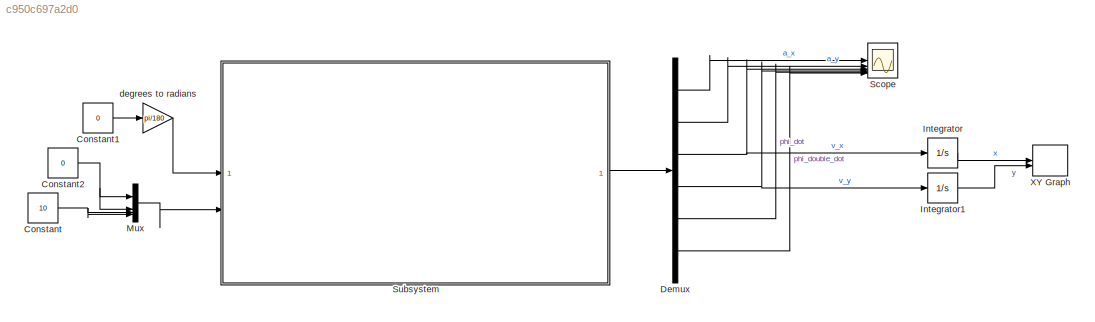
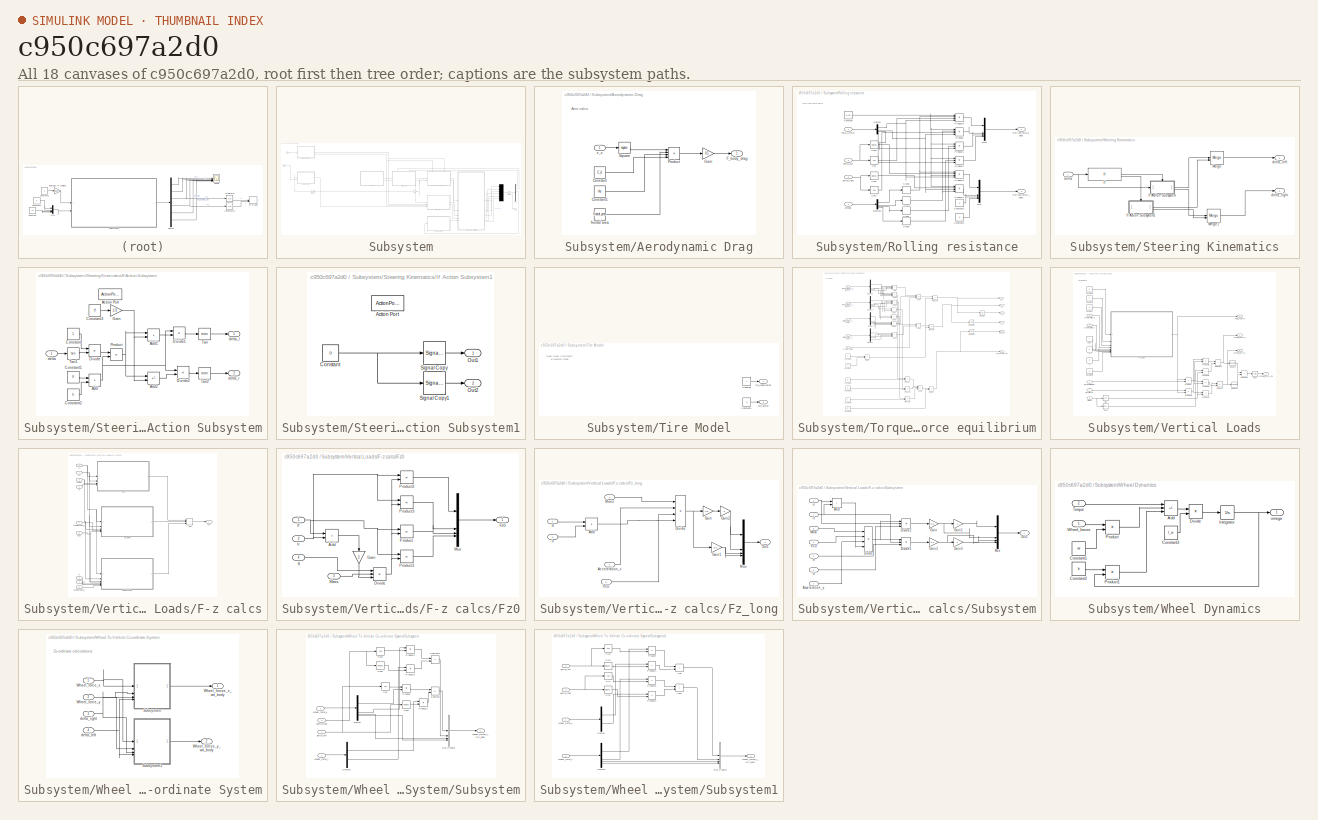
[diagram: thumbnail index - all 18 canvases of the model, root first then tree order]
MODEL slx_c950c697a2d0
KIND model
CONFIG AbsTol = auto
CONFIG EnableMultiTasking = off
CONFIG FixedStep = auto
CONFIG MaxStep = 0.1
CONFIG MinStep = auto
CONFIG RelTol = 1e-3
CONFIG SampleTimeConstraint = Unconstrained
CONFIG SolverName = ode45
CONFIG StartTime = 0.0
CONFIG StopTime = 100
WORKSPACE source: external: MATLAB File  (data not in archive)
BLOCK [Constant] Constant
  Value = 10
BLOCK [Constant] Constant1
  Value = 0
BLOCK [Constant] Constant2
  Value = 0
BLOCK [Demux] Demux
  Outputs = 6
BLOCK [Integrator] Integrator
BLOCK [Integrator] Integrator1
BLOCK [Mux] Mux
  DisplayOption = bar
BLOCK [Scope] Scope
  Floating = off
  NumInputPorts = 6
  ScopeSpecificationString = Simulink.scopes.TimeScopeBlockCfg('CurrentConfiguration', extmgr.ConfigurationSet(extmgr.Configuration('Core','General UI',true),extmgr.Configuration('Core','Source UI',true),extmgr.Configuration('Sources','WiredSimulink',true),extmgr.Configuration('Visuals','Time Domain',true,'SerializedDisplays',{struct('MinYLimReal','-1.23696','MaxYLimReal','11.13263','YLabelReal','','MinYLimMag','0.00000','Max...<+5352ch>
BLOCK [SubSystem] Subsystem
BLOCK [Abs] Subsystem/Abs
  SaturateOnIntegerOverflow = off
BLOCK [SubSystem] Subsystem/Aerodynamic Drag
BLOCK [Constant] Subsystem/Aerodynamic Drag/Constant
  Value = C_d
BLOCK [Constant] Subsystem/Aerodynamic Drag/Constant1
  Value = rho
BLOCK [Outport] Subsystem/Aerodynamic Drag/F_body_drag
BLOCK [Gain] Subsystem/Aerodynamic Drag/Gain
  Gain = 0.5
BLOCK [Product] Subsystem/Aerodynamic Drag/Product
  Inputs = 4
BLOCK [Math] Subsystem/Aerodynamic Drag/Square
  Operator = square
BLOCK [Constant] Subsystem/Aerodynamic Drag/frontal area
  Value = frontal_area
BLOCK [Inport] Subsystem/Aerodynamic Drag/v_x
BLOCK [Demux] Subsystem/Demux
  Outputs = 6
BLOCK [Mux] Subsystem/Mux
  DisplayOption = signals
  Inputs = 6
BLOCK [Outport] Subsystem/Out1
BLOCK [SubSystem] Subsystem/Rolling resistance
BLOCK [Constant] Subsystem/Rolling resistance/Constant
  Value = C_roll
BLOCK [Constant] Subsystem/Rolling resistance/Constant1
  Value = 0
BLOCK [Constant] Subsystem/Rolling resistance/Constant2
  Value = 0
BLOCK [Trigonometry] Subsystem/Rolling resistance/Cos
  Operator = cos
BLOCK [Trigonometry] Subsystem/Rolling resistance/Cos1
  Operator = cos
BLOCK [Trigonometry] Subsystem/Rolling resistance/Cos2
BLOCK [Trigonometry] Subsystem/Rolling resistance/Cos3
BLOCK [Demux] Subsystem/Rolling resistance/Demux
BLOCK [Demux] Subsystem/Rolling resistance/Demux1
BLOCK [Mux] Subsystem/Rolling resistance/Mux
  DisplayOption = bar
BLOCK [Mux] Subsystem/Rolling resistance/Mux1
  DisplayOption = bar
BLOCK [Product] Subsystem/Rolling resistance/Product
  Inputs = 4
BLOCK [Product] Subsystem/Rolling resistance/Product1
  Inputs = 3
BLOCK [Product] Subsystem/Rolling resistance/Product2
  Inputs = 3
BLOCK [Product] Subsystem/Rolling resistance/Product3
  Inputs = 4
BLOCK [Product] Subsystem/Rolling resistance/Product4
  Inputs = 4
BLOCK [Product] Subsystem/Rolling resistance/Product5
  Inputs = 4
BLOCK [Outport] Subsystem/Rolling resistance/Rolling_force_x_body
BLOCK [Outport] Subsystem/Rolling resistance/Rolling_force_y_body
  Port = 2
BLOCK [Signum] Subsystem/Rolling resistance/Sign
BLOCK [Signum] Subsystem/Rolling resistance/Sign1
BLOCK [Signum] Subsystem/Rolling resistance/Sign2
BLOCK [Signum] Subsystem/Rolling resistance/Sign3
BLOCK [Inport] Subsystem/Rolling resistance/Total_z_force
BLOCK [Inport] Subsystem/Rolling resistance/delta_left
  Port = 2
BLOCK [Inport] Subsystem/Rolling resistance/delta_right
  Port = 3
BLOCK [Inport] Subsystem/Rolling resistance/omega
  Port = 4
BLOCK [SubSystem] Subsystem/Steering Kinematics
BLOCK [If] Subsystem/Steering Kinematics/If
  IfExpression = u1 ~= 0
BLOCK [SubSystem] Subsystem/Steering Kinematics/If Action Subsystem
  TreatAsAtomicUnit = on
BLOCK [ActionPort] Subsystem/Steering Kinematics/If Action Subsystem/Action Port
  ActionPortLabel = if(u1 ~= 0)
BLOCK [Sum] Subsystem/Steering Kinematics/If Action Subsystem/Add
  IconShape = rectangular
BLOCK [Sum] Subsystem/Steering Kinematics/If Action Subsystem/Add1
  IconShape = rectangular
BLOCK [Sum] Subsystem/Steering Kinematics/If Action Subsystem/Add2
  IconShape = rectangular
  Inputs = +-
BLOCK [Constant] Subsystem/Steering Kinematics/If Action Subsystem/Constant
BLOCK [Constant] Subsystem/Steering Kinematics/If Action Subsystem/Constant1
  Value = lf
BLOCK [Constant] Subsystem/Steering Kinematics/If Action Subsystem/Constant2
  Value = lr
BLOCK [Constant] Subsystem/Steering Kinematics/If Action Subsystem/Constant3
  Value = tf
BLOCK [Product] Subsystem/Steering Kinematics/If Action Subsystem/Divide
  Inputs = */
BLOCK [Product] Subsystem/Steering Kinematics/If Action Subsystem/Divide1
  Inputs = */
BLOCK [Product] Subsystem/Steering Kinematics/If Action Subsystem/Divide2
  Inputs = */
BLOCK [Gain] Subsystem/Steering Kinematics/If Action Subsystem/Gain
  Gain = 1/2
BLOCK [Product] Subsystem/Steering Kinematics/If Action Subsystem/Product
BLOCK [Trigonometry] Subsystem/Steering Kinematics/If Action Subsystem/Tan
  Operator = atan
BLOCK [Trigonometry] Subsystem/Steering Kinematics/If Action Subsystem/Tan1
  Operator = tan
BLOCK [Trigonometry] Subsystem/Steering Kinematics/If Action Subsystem/Tan2
  Operator = atan
BLOCK [Inport] Subsystem/Steering Kinematics/If Action Subsystem/delta
BLOCK [Outport] Subsystem/Steering Kinematics/If Action Subsystem/delta_l
BLOCK [Outport] Subsystem/Steering Kinematics/If Action Subsystem/delta_r
  Port = 2
BLOCK [SubSystem] Subsystem/Steering Kinematics/If Action Subsystem1
  TreatAsAtomicUnit = on
BLOCK [ActionPort] Subsystem/Steering Kinematics/If Action Subsystem1/Action Port
  ActionPortLabel = else
BLOCK [Constant] Subsystem/Steering Kinematics/If Action Subsystem1/Constant
  Value = 0
BLOCK [Outport] Subsystem/Steering Kinematics/If Action Subsystem1/Out1
BLOCK [Outport] Subsystem/Steering Kinematics/If Action Subsystem1/Out2
  Port = 2
BLOCK [SignalConversion] Subsystem/Steering Kinematics/If Action Subsystem1/Signal Copy
  OverrideOpt = off
BLOCK [SignalConversion] Subsystem/Steering Kinematics/If Action Subsystem1/Signal Copy1
  OverrideOpt = off
BLOCK [Merge] Subsystem/Steering Kinematics/Merge
BLOCK [Merge] Subsystem/Steering Kinematics/Merge1
BLOCK [Inport] Subsystem/Steering Kinematics/delta
BLOCK [Outport] Subsystem/Steering Kinematics/delta_left
BLOCK [Outport] Subsystem/Steering Kinematics/delta_right
  Port = 2
BLOCK [SubSystem] Subsystem/Tire Model
BLOCK [Constant] Subsystem/Tire Model/Constant
BLOCK [Constant] Subsystem/Tire Model/Constant1
  Value = 0
BLOCK [Outport] Subsystem/Tire Model/mu_lateral
  Port = 2
BLOCK [Outport] Subsystem/Tire Model/mu_longitudinal
BLOCK [Inport] Subsystem/Torque
  Port = 2
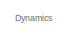
[diagram: Subsystem/Torque and force equilibrium - part 1/2, top left region]
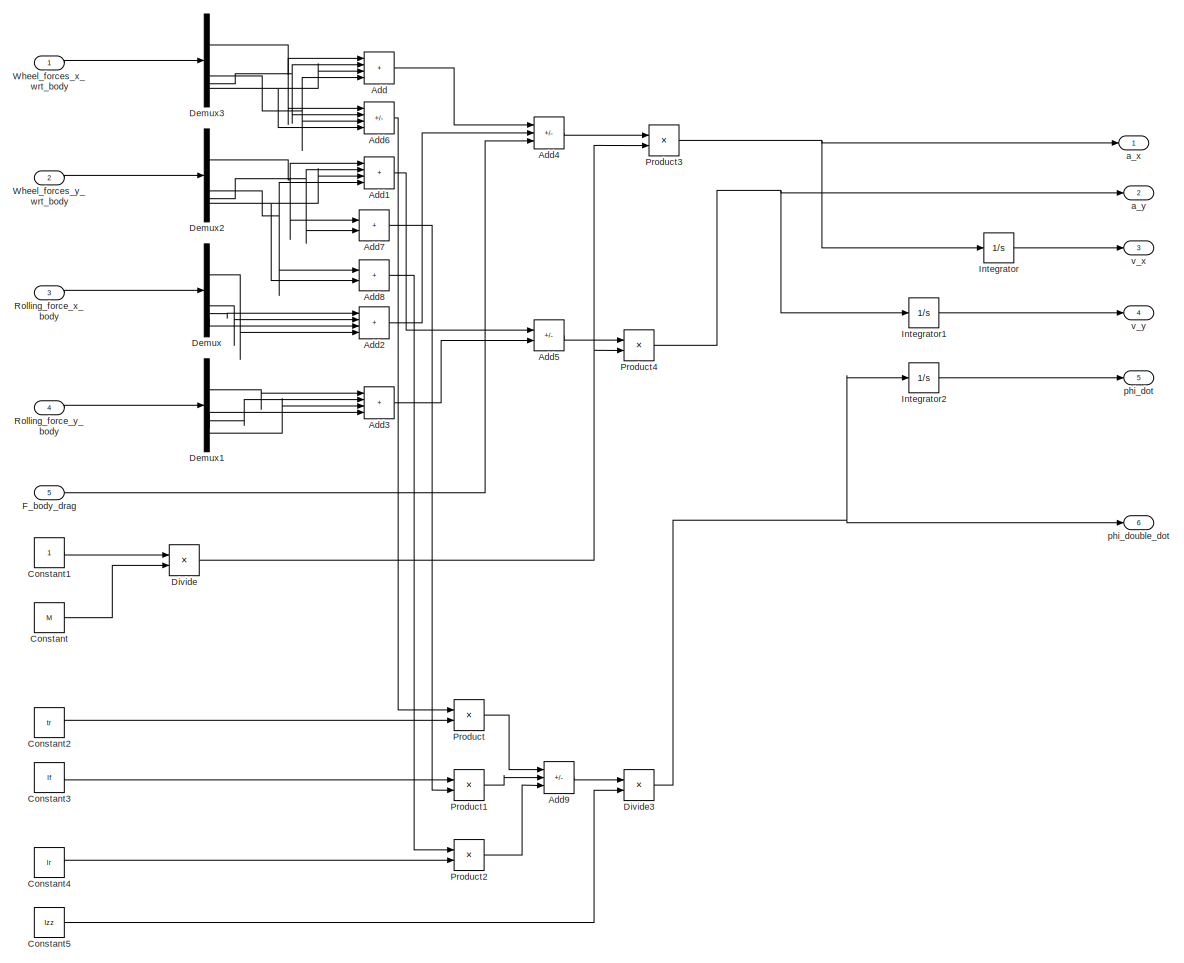
[diagram: Subsystem/Torque and force equilibrium - part 2/2, most of the canvas]
BLOCK [SubSystem] Subsystem/Torque and force equilibrium
BLOCK [Sum] Subsystem/Torque and force equilibrium/Add
  IconShape = rectangular
  Inputs = ++++
BLOCK [Sum] Subsystem/Torque and force equilibrium/Add1
  IconShape = rectangular
  Inputs = ++++
BLOCK [Sum] Subsystem/Torque and force equilibrium/Add2
  IconShape = rectangular
  Inputs = ++++
BLOCK [Sum] Subsystem/Torque and force equilibrium/Add3
  IconShape = rectangular
  Inputs = ++++
BLOCK [Sum] Subsystem/Torque and force equilibrium/Add4
  IconShape = rectangular
  Inputs = +--
BLOCK [Sum] Subsystem/Torque and force equilibrium/Add5
  IconShape = rectangular
  Inputs = +-
BLOCK [Sum] Subsystem/Torque and force equilibrium/Add6
  IconShape = rectangular
  Inputs = -+-+
BLOCK [Sum] Subsystem/Torque and force equilibrium/Add7
  IconShape = rectangular
BLOCK [Sum] Subsystem/Torque and force equilibrium/Add8
  IconShape = rectangular
BLOCK [Sum] Subsystem/Torque and force equilibrium/Add9
  IconShape = rectangular
  Inputs = ++-
BLOCK [Constant] Subsystem/Torque and force equilibrium/Constant
  Value = M
BLOCK [Constant] Subsystem/Torque and force equilibrium/Constant1
BLOCK [Constant] Subsystem/Torque and force equilibrium/Constant2
  Value = tr
BLOCK [Constant] Subsystem/Torque and force equilibrium/Constant3
  Value = lf
BLOCK [Constant] Subsystem/Torque and force equilibrium/Constant4
  Value = lr
BLOCK [Constant] Subsystem/Torque and force equilibrium/Constant5
  Value = Izz
BLOCK [Demux] Subsystem/Torque and force equilibrium/Demux
BLOCK [Demux] Subsystem/Torque and force equilibrium/Demux1
BLOCK [Demux] Subsystem/Torque and force equilibrium/Demux2
BLOCK [Demux] Subsystem/Torque and force equilibrium/Demux3
BLOCK [Product] Subsystem/Torque and force equilibrium/Divide
  Inputs = */
BLOCK [Product] Subsystem/Torque and force equilibrium/Divide3
  Inputs = */
BLOCK [Inport] Subsystem/Torque and force equilibrium/F_body_drag
  Port = 5
BLOCK [Integrator] Subsystem/Torque and force equilibrium/Integrator
BLOCK [Integrator] Subsystem/Torque and force equilibrium/Integrator1
BLOCK [Integrator] Subsystem/Torque and force equilibrium/Integrator2
BLOCK [Product] Subsystem/Torque and force equilibrium/Product
BLOCK [Product] Subsystem/Torque and force equilibrium/Product1
BLOCK [Product] Subsystem/Torque and force equilibrium/Product2
BLOCK [Product] Subsystem/Torque and force equilibrium/Product3
BLOCK [Product] Subsystem/Torque and force equilibrium/Product4
BLOCK [Inport] Subsystem/Torque and force equilibrium/Rolling_force_x_body
  Port = 3
BLOCK [Inport] Subsystem/Torque and force equilibrium/Rolling_force_y_body
  Port = 4
BLOCK [Inport] Subsystem/Torque and force equilibrium/Wheel_forces_x_wrt_body
BLOCK [Inport] Subsystem/Torque and force equilibrium/Wheel_forces_y_wrt_body
  Port = 2
BLOCK [Outport] Subsystem/Torque and force equilibrium/a_x
BLOCK [Outport] Subsystem/Torque and force equilibrium/a_y
  Port = 2
BLOCK [Outport] Subsystem/Torque and force equilibrium/phi_dot
  Port = 5
BLOCK [Outport] Subsystem/Torque and force equilibrium/phi_double_dot
  Port = 6
BLOCK [Outport] Subsystem/Torque and force equilibrium/v_x
  Port = 3
BLOCK [Outport] Subsystem/Torque and force equilibrium/v_y
  Port = 4
BLOCK [UnitDelay] Subsystem/Unit Delay
  HasFrameUpgradeWarning = on
  SampleTime = -1
BLOCK [UnitDelay] Subsystem/Unit Delay2
  HasFrameUpgradeWarning = on
  SampleTime = -1
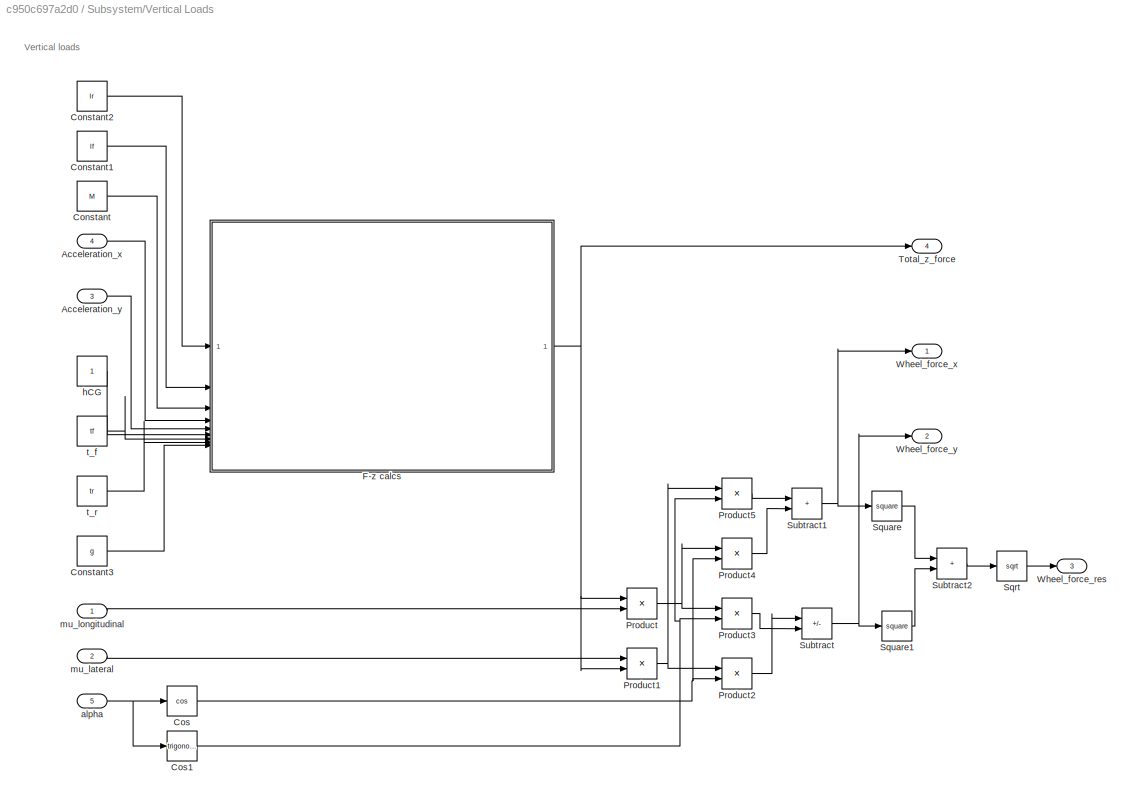
BLOCK [SubSystem] Subsystem/Vertical Loads
  PortSchema = {"entries":[{"content":{"sides":[{"content":{"connectorIds":["In1","In2"]},"type":"ConnectorPlacement.EquallySpacedRectSide","uuid":"420474dd-77ae-41a3-b184-b8a376845dee"},{"content":{"connectorIds":["Out1","Out2","Out3"],"side":"RIGHT"},"type":"ConnectorPlacement.EquallySpacedRectSide","uuid":"e98bfd49-6816-4384-b726-feedfd108428"},{"content":{"connectorIds":["In3","In4"],"side":"TOP"},"type":"Co...<+427ch>
BLOCK [Inport] Subsystem/Vertical Loads/Acceleration_x
  Port = 4
BLOCK [Inport] Subsystem/Vertical Loads/Acceleration_y
  Port = 3
BLOCK [Constant] Subsystem/Vertical Loads/Constant
  Value = M
BLOCK [Constant] Subsystem/Vertical Loads/Constant1
  Value = lf
BLOCK [Constant] Subsystem/Vertical Loads/Constant2
  Value = lr
BLOCK [Constant] Subsystem/Vertical Loads/Constant3
  Value = g
BLOCK [Trigonometry] Subsystem/Vertical Loads/Cos
  Operator = cos
BLOCK [Trigonometry] Subsystem/Vertical Loads/Cos1
BLOCK [SubSystem] Subsystem/Vertical Loads/F-z calcs
  NameLocation = top
BLOCK [Inport] Subsystem/Vertical Loads/F-z calcs/Acceleration_x
  Port = 4
BLOCK [Inport] Subsystem/Vertical Loads/F-z calcs/Acceleration_y
  Port = 5
BLOCK [Sum] Subsystem/Vertical Loads/F-z calcs/Add
  IconShape = rectangular
  Inputs = +++
BLOCK [Outport] Subsystem/Vertical Loads/F-z calcs/F_z
BLOCK [SubSystem] Subsystem/Vertical Loads/F-z calcs/Fz0
BLOCK [Sum] Subsystem/Vertical Loads/F-z calcs/Fz0/Add
  IconShape = rectangular
BLOCK [Product] Subsystem/Vertical Loads/F-z calcs/Fz0/Divide
  Inputs = **/
BLOCK [Outport] Subsystem/Vertical Loads/F-z calcs/Fz0/Fz0
BLOCK [Gain] Subsystem/Vertical Loads/F-z calcs/Fz0/Gain
  Gain = 2
  NameLocation = left
BLOCK [Inport] Subsystem/Vertical Loads/F-z calcs/Fz0/Mass
  Port = 3
BLOCK [Mux] Subsystem/Vertical Loads/F-z calcs/Fz0/Mux
  DisplayOption = bar
BLOCK [Product] Subsystem/Vertical Loads/F-z calcs/Fz0/Product
BLOCK [Product] Subsystem/Vertical Loads/F-z calcs/Fz0/Product1
BLOCK [Product] Subsystem/Vertical Loads/F-z calcs/Fz0/Product2
BLOCK [Product] Subsystem/Vertical Loads/F-z calcs/Fz0/Product3
BLOCK [Inport] Subsystem/Vertical Loads/F-z calcs/Fz0/g
  Port = 4
BLOCK [Inport] Subsystem/Vertical Loads/F-z calcs/Fz0/lf
BLOCK [Inport] Subsystem/Vertical Loads/F-z calcs/Fz0/lr
  Port = 2
BLOCK [SubSystem] Subsystem/Vertical Loads/F-z calcs/Fz_long
BLOCK [Inport] Subsystem/Vertical Loads/F-z calcs/Fz_long/Acceleration_x
  Port = 4
BLOCK [Sum] Subsystem/Vertical Loads/F-z calcs/Fz_long/Add
  IconShape = rectangular
BLOCK [Product] Subsystem/Vertical Loads/F-z calcs/Fz_long/Divide
  Inputs = ***/
BLOCK [Gain] Subsystem/Vertical Loads/F-z calcs/Fz_long/Gain
  Gain = 0.5
BLOCK [Gain] Subsystem/Vertical Loads/F-z calcs/Fz_long/Gain1
  Gain = 0.5
BLOCK [Gain] Subsystem/Vertical Loads/F-z calcs/Fz_long/Gain2
  Gain = -1
BLOCK [Inport] Subsystem/Vertical Loads/F-z calcs/Fz_long/Mass
  Port = 3
BLOCK [Mux] Subsystem/Vertical Loads/F-z calcs/Fz_long/Mux
  DisplayOption = bar
BLOCK [Outport] Subsystem/Vertical Loads/F-z calcs/Fz_long/Out1
BLOCK [Inport] Subsystem/Vertical Loads/F-z calcs/Fz_long/hCG
  Port = 5
BLOCK [Inport] Subsystem/Vertical Loads/F-z calcs/Fz_long/lf
BLOCK [Inport] Subsystem/Vertical Loads/F-z calcs/Fz_long/lr
  Port = 2
BLOCK [Inport] Subsystem/Vertical Loads/F-z calcs/Mass
  Port = 3
BLOCK [SubSystem] Subsystem/Vertical Loads/F-z calcs/Subsystem
BLOCK [Inport] Subsystem/Vertical Loads/F-z calcs/Subsystem/Acceleration_y
  Port = 7
BLOCK [Sum] Subsystem/Vertical Loads/F-z calcs/Subsystem/Add
  IconShape = rectangular
BLOCK [Product] Subsystem/Vertical Loads/F-z calcs/Subsystem/Divide
  Inputs = ***/
BLOCK [Product] Subsystem/Vertical Loads/F-z calcs/Subsystem/Divide1
  Inputs = **/
BLOCK [Product] Subsystem/Vertical Loads/F-z calcs/Subsystem/Divide2
  Inputs = **/
BLOCK [Gain] Subsystem/Vertical Loads/F-z calcs/Subsystem/Gain
  Gain = 0.5
BLOCK [Gain] Subsystem/Vertical Loads/F-z calcs/Subsystem/Gain1
  Gain = -1
BLOCK [Gain] Subsystem/Vertical Loads/F-z calcs/Subsystem/Gain2
  Gain = 0.5
BLOCK [Gain] Subsystem/Vertical Loads/F-z calcs/Subsystem/Gain3
  Gain = -1
BLOCK [Inport] Subsystem/Vertical Loads/F-z calcs/Subsystem/Mass
  Port = 2
BLOCK [Mux] Subsystem/Vertical Loads/F-z calcs/Subsystem/Mux
  DisplayOption = bar
BLOCK [Outport] Subsystem/Vertical Loads/F-z calcs/Subsystem/Out1
BLOCK [Inport] Subsystem/Vertical Loads/F-z calcs/Subsystem/hCG
  Port = 4
BLOCK [Inport] Subsystem/Vertical Loads/F-z calcs/Subsystem/lf
BLOCK [Inport] Subsystem/Vertical Loads/F-z calcs/Subsystem/lr
  Port = 3
BLOCK [Inport] Subsystem/Vertical Loads/F-z calcs/Subsystem/tf
  Port = 6
BLOCK [Inport] Subsystem/Vertical Loads/F-z calcs/Subsystem/tr
  Port = 5
BLOCK [Inport] Subsystem/Vertical Loads/F-z calcs/g
  Port = 9
BLOCK [Inport] Subsystem/Vertical Loads/F-z calcs/hCG
  Port = 6
BLOCK [Inport] Subsystem/Vertical Loads/F-z calcs/lf
  Port = 2
BLOCK [Inport] Subsystem/Vertical Loads/F-z calcs/lr
BLOCK [Inport] Subsystem/Vertical Loads/F-z calcs/tf
  Port = 7
BLOCK [Inport] Subsystem/Vertical Loads/F-z calcs/tr
  Port = 8
BLOCK [Product] Subsystem/Vertical Loads/Product
BLOCK [Product] Subsystem/Vertical Loads/Product1
BLOCK [Product] Subsystem/Vertical Loads/Product2
BLOCK [Product] Subsystem/Vertical Loads/Product3
BLOCK [Product] Subsystem/Vertical Loads/Product4
BLOCK [Product] Subsystem/Vertical Loads/Product5
BLOCK [Sqrt] Subsystem/Vertical Loads/Sqrt
BLOCK [Math] Subsystem/Vertical Loads/Square
  Operator = square
BLOCK [Math] Subsystem/Vertical Loads/Square1
  Operator = square
BLOCK [Sum] Subsystem/Vertical Loads/Subtract
  IconShape = rectangular
  Inputs = +-
BLOCK [Sum] Subsystem/Vertical Loads/Subtract1
  IconShape = rectangular
BLOCK [Sum] Subsystem/Vertical Loads/Subtract2
  IconShape = rectangular
BLOCK [Outport] Subsystem/Vertical Loads/Total_z_force
  Port = 4
BLOCK [Outport] Subsystem/Vertical Loads/Wheel_force_res
  Port = 3
BLOCK [Outport] Subsystem/Vertical Loads/Wheel_force_x
BLOCK [Outport] Subsystem/Vertical Loads/Wheel_force_y
  Port = 2
BLOCK [Inport] Subsystem/Vertical Loads/alpha
  Port = 5
BLOCK [Constant] Subsystem/Vertical Loads/hCG
BLOCK [Inport] Subsystem/Vertical Loads/mu_lateral
  Port = 2
BLOCK [Inport] Subsystem/Vertical Loads/mu_longitudinal
BLOCK [Constant] Subsystem/Vertical Loads/t_f
  Value = tf
BLOCK [Constant] Subsystem/Vertical Loads/t_r
  Value = tr
BLOCK [SubSystem] Subsystem/Wheel Dynamics
BLOCK [Sum] Subsystem/Wheel Dynamics/Add
  IconShape = rectangular
  Inputs = +--
BLOCK [Constant] Subsystem/Wheel Dynamics/Constant1
  Value = wr
BLOCK [Constant] Subsystem/Wheel Dynamics/Constant2
  Value = b
BLOCK [Constant] Subsystem/Wheel Dynamics/Constant3
  NameLocation = top
  Value = I_w
BLOCK [Product] Subsystem/Wheel Dynamics/Divide
  Inputs = */
BLOCK [Integrator] Subsystem/Wheel Dynamics/Integrator
BLOCK [Product] Subsystem/Wheel Dynamics/Product
BLOCK [Product] Subsystem/Wheel Dynamics/Product1
BLOCK [Inport] Subsystem/Wheel Dynamics/Torque
  Port = 2
BLOCK [Inport] Subsystem/Wheel Dynamics/Wheel_forces
BLOCK [Outport] Subsystem/Wheel Dynamics/omega
BLOCK [SubSystem] Subsystem/Wheel To Vehicle Co-ordinate System
  PortSchema = {"entries":[{"content":{"sides":[{"content":{"connectorIds":["In1","In2"]},"type":"ConnectorPlacement.EquallySpacedRectSide","uuid":"1d639fc9-362c-4114-a9a5-2cccb0aa4f8f"},{"content":{"connectorIds":["Out1","Out2"],"side":"RIGHT"},"type":"ConnectorPlacement.EquallySpacedRectSide","uuid":"af7b8bc1-4639-4e57-ae25-0425d451201b"},{"content":{"connectorIds":["In3","In4"],"side":"TOP"},"type":"Connector...<+264ch>
BLOCK [SubSystem] Subsystem/Wheel To Vehicle Co-ordinate System/Subsystem
BLOCK [BusCreator] Subsystem/Wheel To Vehicle Co-ordinate System/Subsystem/Bus Creator
  DisplayOption = bar
  InheritFromInputs = on
  Inputs = 4
BLOCK [Trigonometry] Subsystem/Wheel To Vehicle Co-ordinate System/Subsystem/Cos
  Operator = cos
BLOCK [Trigonometry] Subsystem/Wheel To Vehicle Co-ordinate System/Subsystem/Cos1
BLOCK [Trigonometry] Subsystem/Wheel To Vehicle Co-ordinate System/Subsystem/Cos2
  Operator = cos
BLOCK [Trigonometry] Subsystem/Wheel To Vehicle Co-ordinate System/Subsystem/Cos3
BLOCK [Demux] Subsystem/Wheel To Vehicle Co-ordinate System/Subsystem/Demux
BLOCK [Demux] Subsystem/Wheel To Vehicle Co-ordinate System/Subsystem/Demux1
BLOCK [Product] Subsystem/Wheel To Vehicle Co-ordinate System/Subsystem/Product
BLOCK [Product] Subsystem/Wheel To Vehicle Co-ordinate System/Subsystem/Product1
BLOCK [Product] Subsystem/Wheel To Vehicle Co-ordinate System/Subsystem/Product2
BLOCK [Product] Subsystem/Wheel To Vehicle Co-ordinate System/Subsystem/Product3
BLOCK [Sum] Subsystem/Wheel To Vehicle Co-ordinate System/Subsystem/Subtract
  IconShape = rectangular
  Inputs = +-
BLOCK [Sum] Subsystem/Wheel To Vehicle Co-ordinate System/Subsystem/Subtract1
  IconShape = rectangular
  Inputs = +-
BLOCK [Inport] Subsystem/Wheel To Vehicle Co-ordinate System/Subsystem/Wheel_force_x
BLOCK [Inport] Subsystem/Wheel To Vehicle Co-ordinate System/Subsystem/Wheel_force_y
  Port = 2
BLOCK [Outport] Subsystem/Wheel To Vehicle Co-ordinate System/Subsystem/Wheel_forces_x_wrt_body
BLOCK [Inport] Subsystem/Wheel To Vehicle Co-ordinate System/Subsystem/delta_left
  Port = 4
BLOCK [Inport] Subsystem/Wheel To Vehicle Co-ordinate System/Subsystem/delta_right
  Port = 3
BLOCK [SubSystem] Subsystem/Wheel To Vehicle Co-ordinate System/Subsystem1
BLOCK [Sum] Subsystem/Wheel To Vehicle Co-ordinate System/Subsystem1/Add
  IconShape = rectangular
BLOCK [Sum] Subsystem/Wheel To Vehicle Co-ordinate System/Subsystem1/Add1
  IconShape = rectangular
BLOCK [BusCreator] Subsystem/Wheel To Vehicle Co-ordinate System/Subsystem1/Bus Creator
  DisplayOption = bar
  InheritFromInputs = on
  Inputs = 4
BLOCK [Demux] Subsystem/Wheel To Vehicle Co-ordinate System/Subsystem1/Demux
BLOCK [Demux] Subsystem/Wheel To Vehicle Co-ordinate System/Subsystem1/Demux1
BLOCK [Product] Subsystem/Wheel To Vehicle Co-ordinate System/Subsystem1/Product
BLOCK [Product] Subsystem/Wheel To Vehicle Co-ordinate System/Subsystem1/Product1
BLOCK [Product] Subsystem/Wheel To Vehicle Co-ordinate System/Subsystem1/Product2
BLOCK [Product] Subsystem/Wheel To Vehicle Co-ordinate System/Subsystem1/Product3
BLOCK [Trigonometry] Subsystem/Wheel To Vehicle Co-ordinate System/Subsystem1/Sin
  Operator = cos
BLOCK [Trigonometry] Subsystem/Wheel To Vehicle Co-ordinate System/Subsystem1/Sin1
BLOCK [Trigonometry] Subsystem/Wheel To Vehicle Co-ordinate System/Subsystem1/Sin2
BLOCK [Trigonometry] Subsystem/Wheel To Vehicle Co-ordinate System/Subsystem1/Sin3
  Operator = cos
BLOCK [Inport] Subsystem/Wheel To Vehicle Co-ordinate System/Subsystem1/Wheel_force_x
BLOCK [Inport] Subsystem/Wheel To Vehicle Co-ordinate System/Subsystem1/Wheel_force_y
  Port = 2
BLOCK [Outport] Subsystem/Wheel To Vehicle Co-ordinate System/Subsystem1/Wheel_forces_y_wrt_body
BLOCK [Inport] Subsystem/Wheel To Vehicle Co-ordinate System/Subsystem1/delta_left
  Port = 4
BLOCK [Inport] Subsystem/Wheel To Vehicle Co-ordinate System/Subsystem1/delta_right
  Port = 3
BLOCK [Inport] Subsystem/Wheel To Vehicle Co-ordinate System/Wheel_force_x
BLOCK [Inport] Subsystem/Wheel To Vehicle Co-ordinate System/Wheel_force_y
  Port = 2
BLOCK [Outport] Subsystem/Wheel To Vehicle Co-ordinate System/Wheel_forces_x_wrt_body
BLOCK [Outport] Subsystem/Wheel To Vehicle Co-ordinate System/Wheel_forces_y_wrt_body
  Port = 2
BLOCK [Inport] Subsystem/Wheel To Vehicle Co-ordinate System/delta_left
  Port = 4
BLOCK [Inport] Subsystem/Wheel To Vehicle Co-ordinate System/delta_right
  Port = 3
BLOCK [Inport] Subsystem/delta
BLOCK [Record] XY Graph
  CompatibilityTag = XY
  FileSettingsInternal = {"entries":[{"content":{"excelSettings":{"content":{},"type":"Streamout.ExcelSettings"}},"type":"Streamout.FileSettingStorage","uuid":""}],"packageUris":["http:\/\/schema.mathworks.com\/mf0\/streamout_blocks\/R2020a"],"version":"1.0"}
  Layout = [1 1]
  SignalsInternal = {"entries":[{"content":{"signals":[{"content":{"blockPath":[],"dimensions":[1],"domain":"","lineColor":"#a2142f","plots":[ 1 ],"port":1,"sid":[""],"signalID":1,"signalName":"x"},"type":"RecordBlkView.Signal","uuid":""},{"content":{"blockPath":[],"dimensions":[1],"domain":"","lineColor":"#139fff","plots":[ 1 ],"port":2,"sid":[""],"signalID":2,"signalName":"y"},"type":"RecordBlkView.Signal","uuid":"...<+148ch>
  VisualizationBindings = {"xyplotplugin":{"info":[{"series":[{"bindingParametersList":[{"parameter":"X-Axis","signalID":1,"signalName":"x"},{"parameter":"Y-Axis","signalID":2,"signalName":"y"}],"seriesID":0}],"subplotID":1}]}}
BLOCK [Gain] degrees to radians
  Gain = pi/180
ANNOTATION Subsystem/Aerodynamic Drag: Aero calcs
ANNOTATION Subsystem/Rolling resistance: Rolling force calcs
ANNOTATION Subsystem/Tire Model: Magic Model implement? Bruckhardt model
ANNOTATION Subsystem/Torque and force equilibrium: Dynamics
ANNOTATION Subsystem/Vertical Loads: Vertical loads
ANNOTATION Subsystem/Wheel To Vehicle Co-ordinate System: Co-ordinate calculations
LINE Constant1:1 -> degrees to radians:1
NET Constant2:1 -> Mux:1, Mux:2
NET Constant:1 -> Mux:3, Mux:4
LINE Demux:1 -> Scope:1
LINE Demux:2 -> Scope:2
NET Demux:3 -> Integrator:1, Scope:3
NET Demux:4 -> Integrator1:1, Scope:4
LINE Demux:5 -> Scope:5
LINE Demux:6 -> Scope:6
LINE Integrator1:1 -> XY Graph:2
LINE Integrator:1 -> XY Graph:1
LINE Mux:1 -> Subsystem:2
LINE Subsystem/Abs:1 -> Subsystem/Unit Delay2:1
LINE Subsystem/Aerodynamic Drag/Constant1:1 -> Subsystem/Aerodynamic Drag/Product:3
LINE Subsystem/Aerodynamic Drag/Constant:1 -> Subsystem/Aerodynamic Drag/Product:4
LINE Subsystem/Aerodynamic Drag/Gain:1 -> Subsystem/Aerodynamic Drag/F_body_drag:1
LINE Subsystem/Aerodynamic Drag/Product:1 -> Subsystem/Aerodynamic Drag/Gain:1
LINE Subsystem/Aerodynamic Drag/Square:1 -> Subsystem/Aerodynamic Drag/Product:1
LINE Subsystem/Aerodynamic Drag/frontal area:1 -> Subsystem/Aerodynamic Drag/Product:2
LINE Subsystem/Aerodynamic Drag/v_x:1 -> Subsystem/Aerodynamic Drag/Square:1
LINE Subsystem/Aerodynamic Drag:1 -> Subsystem/Torque and force equilibrium:5
LINE Subsystem/Demux:1 -> Subsystem/Vertical Loads:4
LINE Subsystem/Demux:2 -> Subsystem/Vertical Loads:3
LINE Subsystem/Demux:3 -> Subsystem/Aerodynamic Drag:1
LINE Subsystem/Mux:1 -> Subsystem/Unit Delay:1
LINE Subsystem/Rolling resistance/Constant1:1 -> Subsystem/Rolling resistance/Mux:3
LINE Subsystem/Rolling resistance/Constant2:1 -> Subsystem/Rolling resistance/Mux:4
NET Subsystem/Rolling resistance/Constant:1 -> Subsystem/Rolling resistance/Product1:1, Subsystem/Rolling resistance/Product2:1, Subsystem/Rolling resistance/Product3:3, Subsystem/Rolling resistance/Product4:1, Subsystem/Rolling resistance/Product5:1, Subsystem/Rolling resistance/Product:1
LINE Subsystem/Rolling resistance/Cos1:1 -> Subsystem/Rolling resistance/Product:3
LINE Subsystem/Rolling resistance/Cos2:1 -> Subsystem/Rolling resistance/Product4:2
LINE Subsystem/Rolling resistance/Cos3:1 -> Subsystem/Rolling resistance/Product3:2
LINE Subsystem/Rolling resistance/Cos:1 -> Subsystem/Rolling resistance/Product5:3
LINE Subsystem/Rolling resistance/Demux1:1 -> Subsystem/Rolling resistance/Sign3:1
LINE Subsystem/Rolling resistance/Demux1:2 -> Subsystem/Rolling resistance/Sign:1
LINE Subsystem/Rolling resistance/Demux1:3 -> Subsystem/Rolling resistance/Sign1:1
LINE Subsystem/Rolling resistance/Demux1:4 -> Subsystem/Rolling resistance/Sign2:1
NET Subsystem/Rolling resistance/Demux:1 -> Subsystem/Rolling resistance/Product3:4, Subsystem/Rolling resistance/Product5:4
NET Subsystem/Rolling resistance/Demux:2 -> Subsystem/Rolling resistance/Product4:3, Subsystem/Rolling resistance/Product:4
LINE Subsystem/Rolling resistance/Demux:3 -> Subsystem/Rolling resistance/Product1:3
LINE Subsystem/Rolling resistance/Demux:4 -> Subsystem/Rolling resistance/Product2:3
LINE Subsystem/Rolling resistance/Mux1:1 -> Subsystem/Rolling resistance/Rolling_force_x_body:1
LINE Subsystem/Rolling resistance/Mux:1 -> Subsystem/Rolling resistance/Rolling_force_y_body:1
LINE Subsystem/Rolling resistance/Product1:1 -> Subsystem/Rolling resistance/Mux1:3
LINE Subsystem/Rolling resistance/Product2:1 -> Subsystem/Rolling resistance/Mux1:4
LINE Subsystem/Rolling resistance/Product3:1 -> Subsystem/Rolling resistance/Mux:1
LINE Subsystem/Rolling resistance/Product4:1 -> Subsystem/Rolling resistance/Mux:2
LINE Subsystem/Rolling resistance/Product5:1 -> Subsystem/Rolling resistance/Mux1:1
LINE Subsystem/Rolling resistance/Product:1 -> Subsystem/Rolling resistance/Mux1:2
LINE Subsystem/Rolling resistance/Sign1:1 -> Subsystem/Rolling resistance/Product1:2
LINE Subsystem/Rolling resistance/Sign2:1 -> Subsystem/Rolling resistance/Product2:2
NET Subsystem/Rolling resistance/Sign3:1 -> Subsystem/Rolling resistance/Product3:1, Subsystem/Rolling resistance/Product5:2
NET Subsystem/Rolling resistance/Sign:1 -> Subsystem/Rolling resistance/Product4:4, Subsystem/Rolling resistance/Product:2
LINE Subsystem/Rolling resistance/Total_z_force:1 -> Subsystem/Rolling resistance/Demux:1
NET Subsystem/Rolling resistance/delta_left:1 -> Subsystem/Rolling resistance/Cos3:1, Subsystem/Rolling resistance/Cos:1
NET Subsystem/Rolling resistance/delta_right:1 -> Subsystem/Rolling resistance/Cos1:1, Subsystem/Rolling resistance/Cos2:1
LINE Subsystem/Rolling resistance/omega:1 -> Subsystem/Rolling resistance/Demux1:1
LINE Subsystem/Rolling resistance:1 -> Subsystem/Torque and force equilibrium:3
LINE Subsystem/Rolling resistance:2 -> Subsystem/Torque and force equilibrium:4
LINE Subsystem/Steering Kinematics/If Action Subsystem/Add1:1 -> Subsystem/Steering Kinematics/If Action Subsystem/Divide1:2
LINE Subsystem/Steering Kinematics/If Action Subsystem/Add2:1 -> Subsystem/Steering Kinematics/If Action Subsystem/Divide2:2
NET Subsystem/Steering Kinematics/If Action Subsystem/Add:1 -> Subsystem/Steering Kinematics/If Action Subsystem/Divide1:1, Subsystem/Steering Kinematics/If Action Subsystem/Divide2:1, Subsystem/Steering Kinematics/If Action Subsystem/Product:2
LINE Subsystem/Steering Kinematics/If Action Subsystem/Constant1:1 -> Subsystem/Steering Kinematics/If Action Subsystem/Add:1
LINE Subsystem/Steering Kinematics/If Action Subsystem/Constant2:1 -> Subsystem/Steering Kinematics/If Action Subsystem/Add:2
LINE Subsystem/Steering Kinematics/If Action Subsystem/Constant3:1 -> Subsystem/Steering Kinematics/If Action Subsystem/Gain:1
LINE Subsystem/Steering Kinematics/If Action Subsystem/Constant:1 -> Subsystem/Steering Kinematics/If Action Subsystem/Divide:1
LINE Subsystem/Steering Kinematics/If Action Subsystem/Divide1:1 -> Subsystem/Steering Kinematics/If Action Subsystem/Tan:1
LINE Subsystem/Steering Kinematics/If Action Subsystem/Divide2:1 -> Subsystem/Steering Kinematics/If Action Subsystem/Tan2:1
LINE Subsystem/Steering Kinematics/If Action Subsystem/Divide:1 -> Subsystem/Steering Kinematics/If Action Subsystem/Product:1
NET Subsystem/Steering Kinematics/If Action Subsystem/Gain:1 -> Subsystem/Steering Kinematics/If Action Subsystem/Add1:2, Subsystem/Steering Kinematics/If Action Subsystem/Add2:2
NET Subsystem/Steering Kinematics/If Action Subsystem/Product:1 -> Subsystem/Steering Kinematics/If Action Subsystem/Add1:1, Subsystem/Steering Kinematics/If Action Subsystem/Add2:1
LINE Subsystem/Steering Kinematics/If Action Subsystem/Tan1:1 -> Subsystem/Steering Kinematics/If Action Subsystem/Divide:2
LINE Subsystem/Steering Kinematics/If Action Subsystem/Tan2:1 -> Subsystem/Steering Kinematics/If Action Subsystem/delta_r:1
LINE Subsystem/Steering Kinematics/If Action Subsystem/Tan:1 -> Subsystem/Steering Kinematics/If Action Subsystem/delta_l:1
LINE Subsystem/Steering Kinematics/If Action Subsystem/delta:1 -> Subsystem/Steering Kinematics/If Action Subsystem/Tan1:1
NET Subsystem/Steering Kinematics/If Action Subsystem1/Constant:1 -> Subsystem/Steering Kinematics/If Action Subsystem1/Signal Copy1:1, Subsystem/Steering Kinematics/If Action Subsystem1/Signal Copy:1
LINE Subsystem/Steering Kinematics/If Action Subsystem1/Signal Copy1:1 -> Subsystem/Steering Kinematics/If Action Subsystem1/Out2:1
LINE Subsystem/Steering Kinematics/If Action Subsystem1/Signal Copy:1 -> Subsystem/Steering Kinematics/If Action Subsystem1/Out1:1
LINE Subsystem/Steering Kinematics/If Action Subsystem1:1 -> Subsystem/Steering Kinematics/Merge:2
LINE Subsystem/Steering Kinematics/If Action Subsystem1:2 -> Subsystem/Steering Kinematics/Merge1:2
LINE Subsystem/Steering Kinematics/If Action Subsystem:1 -> Subsystem/Steering Kinematics/Merge:1
LINE Subsystem/Steering Kinematics/If Action Subsystem:2 -> Subsystem/Steering Kinematics/Merge1:1
LINE Subsystem/Steering Kinematics/If:1 -> Subsystem/Steering Kinematics/If Action Subsystem:ifaction
LINE Subsystem/Steering Kinematics/If:2 -> Subsystem/Steering Kinematics/If Action Subsystem1:ifaction
LINE Subsystem/Steering Kinematics/Merge1:1 -> Subsystem/Steering Kinematics/delta_right:1
LINE Subsystem/Steering Kinematics/Merge:1 -> Subsystem/Steering Kinematics/delta_left:1
NET Subsystem/Steering Kinematics/delta:1 -> Subsystem/Steering Kinematics/If Action Subsystem:1, Subsystem/Steering Kinematics/If:1
NET Subsystem/Steering Kinematics:1 -> Subsystem/Rolling resistance:2, Subsystem/Wheel To Vehicle Co-ordinate System:4
NET Subsystem/Steering Kinematics:2 -> Subsystem/Rolling resistance:3, Subsystem/Wheel To Vehicle Co-ordinate System:3
LINE Subsystem/Tire Model/Constant1:1 -> Subsystem/Tire Model/mu_lateral:1
LINE Subsystem/Tire Model/Constant:1 -> Subsystem/Tire Model/mu_longitudinal:1
LINE Subsystem/Tire Model:1 -> Subsystem/Vertical Loads:1
LINE Subsystem/Tire Model:2 -> Subsystem/Vertical Loads:2
LINE Subsystem/Torque and force equilibrium/Add1:1 -> Subsystem/Torque and force equilibrium/Add5:1
LINE Subsystem/Torque and force equilibrium/Add2:1 -> Subsystem/Torque and force equilibrium/Add4:2
LINE Subsystem/Torque and force equilibrium/Add3:1 -> Subsystem/Torque and force equilibrium/Add5:2
LINE Subsystem/Torque and force equilibrium/Add4:1 -> Subsystem/Torque and force equilibrium/Product3:1
LINE Subsystem/Torque and force equilibrium/Add5:1 -> Subsystem/Torque and force equilibrium/Product4:1
LINE Subsystem/Torque and force equilibrium/Add6:1 -> Subsystem/Torque and force equilibrium/Product:1
LINE Subsystem/Torque and force equilibrium/Add7:1 -> Subsystem/Torque and force equilibrium/Product1:2
LINE Subsystem/Torque and force equilibrium/Add8:1 -> Subsystem/Torque and force equilibrium/Product2:1
LINE Subsystem/Torque and force equilibrium/Add9:1 -> Subsystem/Torque and force equilibrium/Divide3:1
LINE Subsystem/Torque and force equilibrium/Add:1 -> Subsystem/Torque and force equilibrium/Add4:1
LINE Subsystem/Torque and force equilibrium/Constant1:1 -> Subsystem/Torque and force equilibrium/Divide:1
LINE Subsystem/Torque and force equilibrium/Constant2:1 -> Subsystem/Torque and force equilibrium/Product:2
LINE Subsystem/Torque and force equilibrium/Constant3:1 -> Subsystem/Torque and force equilibrium/Product1:1
LINE Subsystem/Torque and force equilibrium/Constant4:1 -> Subsystem/Torque and force equilibrium/Product2:2
LINE Subsystem/Torque and force equilibrium/Constant5:1 -> Subsystem/Torque and force equilibrium/Divide3:2
LINE Subsystem/Torque and force equilibrium/Constant:1 -> Subsystem/Torque and force equilibrium/Divide:2
LINE Subsystem/Torque and force equilibrium/Demux1:1 -> Subsystem/Torque and force equilibrium/Add3:1
LINE Subsystem/Torque and force equilibrium/Demux1:2 -> Subsystem/Torque and force equilibrium/Add3:2
LINE Subsystem/Torque and force equilibrium/Demux1:3 -> Subsystem/Torque and force equilibrium/Add3:4
LINE Subsystem/Torque and force equilibrium/Demux1:4 -> Subsystem/Torque and force equilibrium/Add3:3
NET Subsystem/Torque and force equilibrium/Demux2:1 -> Subsystem/Torque and force equilibrium/Add1:1, Subsystem/Torque and force equilibrium/Add7:1
NET Subsystem/Torque and force equilibrium/Demux2:2 -> Subsystem/Torque and force equilibrium/Add1:4, Subsystem/Torque and force equilibrium/Add8:1
NET Subsystem/Torque and force equilibrium/Demux2:3 -> Subsystem/Torque and force equilibrium/Add1:2, Subsystem/Torque and force equilibrium/Add7:2
NET Subsystem/Torque and force equilibrium/Demux2:4 -> Subsystem/Torque and force equilibrium/Add1:3, Subsystem/Torque and force equilibrium/Add8:2
NET Subsystem/Torque and force equilibrium/Demux3:1 -> Subsystem/Torque and force equilibrium/Add6:1, Subsystem/Torque and force equilibrium/Add:1
NET Subsystem/Torque and force equilibrium/Demux3:2 -> Subsystem/Torque and force equilibrium/Add6:3, Subsystem/Torque and force equilibrium/Add:4
NET Subsystem/Torque and force equilibrium/Demux3:3 -> Subsystem/Torque and force equilibrium/Add6:2, Subsystem/Torque and force equilibrium/Add:2
NET Subsystem/Torque and force equilibrium/Demux3:4 -> Subsystem/Torque and force equilibrium/Add6:4, Subsystem/Torque and force equilibrium/Add:3
LINE Subsystem/Torque and force equilibrium/Demux:1 -> Subsystem/Torque and force equilibrium/Add2:4
LINE Subsystem/Torque and force equilibrium/Demux:2 -> Subsystem/Torque and force equilibrium/Add2:2
LINE Subsystem/Torque and force equilibrium/Demux:3 -> Subsystem/Torque and force equilibrium/Add2:1
LINE Subsystem/Torque and force equilibrium/Demux:4 -> Subsystem/Torque and force equilibrium/Add2:3
NET Subsystem/Torque and force equilibrium/Divide3:1 -> Subsystem/Torque and force equilibrium/Integrator2:1, Subsystem/Torque and force equilibrium/phi_double_dot:1
NET Subsystem/Torque and force equilibrium/Divide:1 -> Subsystem/Torque and force equilibrium/Product3:2, Subsystem/Torque and force equilibrium/Product4:2
LINE Subsystem/Torque and force equilibrium/F_body_drag:1 -> Subsystem/Torque and force equilibrium/Add4:3
LINE Subsystem/Torque and force equilibrium/Integrator1:1 -> Subsystem/Torque and force equilibrium/v_y:1
LINE Subsystem/Torque and force equilibrium/Integrator2:1 -> Subsystem/Torque and force equilibrium/phi_dot:1
LINE Subsystem/Torque and force equilibrium/Integrator:1 -> Subsystem/Torque and force equilibrium/v_x:1
LINE Subsystem/Torque and force equilibrium/Product1:1 -> Subsystem/Torque and force equilibrium/Add9:2
LINE Subsystem/Torque and force equilibrium/Product2:1 -> Subsystem/Torque and force equilibrium/Add9:3
NET Subsystem/Torque and force equilibrium/Product3:1 -> Subsystem/Torque and force equilibrium/Integrator:1, Subsystem/Torque and force equilibrium/a_x:1
NET Subsystem/Torque and force equilibrium/Product4:1 -> Subsystem/Torque and force equilibrium/Integrator1:1, Subsystem/Torque and force equilibrium/a_y:1
LINE Subsystem/Torque and force equilibrium/Product:1 -> Subsystem/Torque and force equilibrium/Add9:1
LINE Subsystem/Torque and force equilibrium/Rolling_force_x_body:1 -> Subsystem/Torque and force equilibrium/Demux:1
LINE Subsystem/Torque and force equilibrium/Rolling_force_y_body:1 -> Subsystem/Torque and force equilibrium/Demux1:1
LINE Subsystem/Torque and force equilibrium/Wheel_forces_x_wrt_body:1 -> Subsystem/Torque and force equilibrium/Demux3:1
LINE Subsystem/Torque and force equilibrium/Wheel_forces_y_wrt_body:1 -> Subsystem/Torque and force equilibrium/Demux2:1
LINE Subsystem/Torque and force equilibrium:1 -> Subsystem/Mux:1
LINE Subsystem/Torque and force equilibrium:2 -> Subsystem/Mux:2
LINE Subsystem/Torque and force equilibrium:3 -> Subsystem/Mux:3
LINE Subsystem/Torque and force equilibrium:4 -> Subsystem/Mux:4
LINE Subsystem/Torque and force equilibrium:5 -> Subsystem/Mux:5
LINE Subsystem/Torque and force equilibrium:6 -> Subsystem/Mux:6
LINE Subsystem/Torque:1 -> Subsystem/Wheel Dynamics:2
LINE Subsystem/Unit Delay2:1 -> Subsystem/Wheel Dynamics:1
NET Subsystem/Unit Delay:1 -> Subsystem/Demux:1, Subsystem/Out1:1
LINE Subsystem/Vertical Loads/Acceleration_x:1 -> Subsystem/Vertical Loads/F-z calcs:4
LINE Subsystem/Vertical Loads/Acceleration_y:1 -> Subsystem/Vertical Loads/F-z calcs:5
LINE Subsystem/Vertical Loads/Constant1:1 -> Subsystem/Vertical Loads/F-z calcs:2
LINE Subsystem/Vertical Loads/Constant2:1 -> Subsystem/Vertical Loads/F-z calcs:1
LINE Subsystem/Vertical Loads/Constant3:1 -> Subsystem/Vertical Loads/F-z calcs:9
LINE Subsystem/Vertical Loads/Constant:1 -> Subsystem/Vertical Loads/F-z calcs:3
NET Subsystem/Vertical Loads/Cos1:1 -> Subsystem/Vertical Loads/Product3:2, Subsystem/Vertical Loads/Product5:2
NET Subsystem/Vertical Loads/Cos:1 -> Subsystem/Vertical Loads/Product2:2, Subsystem/Vertical Loads/Product4:2
LINE Subsystem/Vertical Loads/F-z calcs/Acceleration_x:1 -> Subsystem/Vertical Loads/F-z calcs/Fz_long:4
LINE Subsystem/Vertical Loads/F-z calcs/Acceleration_y:1 -> Subsystem/Vertical Loads/F-z calcs/Subsystem:7
LINE Subsystem/Vertical Loads/F-z calcs/Add:1 -> Subsystem/Vertical Loads/F-z calcs/F_z:1
LINE Subsystem/Vertical Loads/F-z calcs/Fz0/Add:1 -> Subsystem/Vertical Loads/F-z calcs/Fz0/Gain:1
NET Subsystem/Vertical Loads/F-z calcs/Fz0/Divide:1 -> Subsystem/Vertical Loads/F-z calcs/Fz0/Product1:2, Subsystem/Vertical Loads/F-z calcs/Fz0/Product2:2, Subsystem/Vertical Loads/F-z calcs/Fz0/Product3:2, Subsystem/Vertical Loads/F-z calcs/Fz0/Product:2
LINE Subsystem/Vertical Loads/F-z calcs/Fz0/Gain:1 -> Subsystem/Vertical Loads/F-z calcs/Fz0/Divide:3
LINE Subsystem/Vertical Loads/F-z calcs/Fz0/Mass:1 -> Subsystem/Vertical Loads/F-z calcs/Fz0/Divide:2
LINE Subsystem/Vertical Loads/F-z calcs/Fz0/Mux:1 -> Subsystem/Vertical Loads/F-z calcs/Fz0/Fz0:1
LINE Subsystem/Vertical Loads/F-z calcs/Fz0/Product1:1 -> Subsystem/Vertical Loads/F-z calcs/Fz0/Mux:4
LINE Subsystem/Vertical Loads/F-z calcs/Fz0/Product2:1 -> Subsystem/Vertical Loads/F-z calcs/Fz0/Mux:1
LINE Subsystem/Vertical Loads/F-z calcs/Fz0/Product3:1 -> Subsystem/Vertical Loads/F-z calcs/Fz0/Mux:2
LINE Subsystem/Vertical Loads/F-z calcs/Fz0/Product:1 -> Subsystem/Vertical Loads/F-z calcs/Fz0/Mux:3
LINE Subsystem/Vertical Loads/F-z calcs/Fz0/g:1 -> Subsystem/Vertical Loads/F-z calcs/Fz0/Divide:1
NET Subsystem/Vertical Loads/F-z calcs/Fz0/lf:1 -> Subsystem/Vertical Loads/F-z calcs/Fz0/Add:1, Subsystem/Vertical Loads/F-z calcs/Fz0/Product1:1, Subsystem/Vertical Loads/F-z calcs/Fz0/Product:1
NET Subsystem/Vertical Loads/F-z calcs/Fz0/lr:1 -> Subsystem/Vertical Loads/F-z calcs/Fz0/Add:2, Subsystem/Vertical Loads/F-z calcs/Fz0/Product2:1, Subsystem/Vertical Loads/F-z calcs/Fz0/Product3:1
LINE Subsystem/Vertical Loads/F-z calcs/Fz0:1 -> Subsystem/Vertical Loads/F-z calcs/Add:1
LINE Subsystem/Vertical Loads/F-z calcs/Fz_long/Acceleration_x:1 -> Subsystem/Vertical Loads/F-z calcs/Fz_long/Divide:2
LINE Subsystem/Vertical Loads/F-z calcs/Fz_long/Add:1 -> Subsystem/Vertical Loads/F-z calcs/Fz_long/Divide:4
NET Subsystem/Vertical Loads/F-z calcs/Fz_long/Divide:1 -> Subsystem/Vertical Loads/F-z calcs/Fz_long/Gain1:1, Subsystem/Vertical Loads/F-z calcs/Fz_long/Gain:1
NET Subsystem/Vertical Loads/F-z calcs/Fz_long/Gain1:1 -> Subsystem/Vertical Loads/F-z calcs/Fz_long/Mux:3, Subsystem/Vertical Loads/F-z calcs/Fz_long/Mux:4
NET Subsystem/Vertical Loads/F-z calcs/Fz_long/Gain2:1 -> Subsystem/Vertical Loads/F-z calcs/Fz_long/Mux:1, Subsystem/Vertical Loads/F-z calcs/Fz_long/Mux:2
LINE Subsystem/Vertical Loads/F-z calcs/Fz_long/Gain:1 -> Subsystem/Vertical Loads/F-z calcs/Fz_long/Gain2:1
LINE Subsystem/Vertical Loads/F-z calcs/Fz_long/Mass:1 -> Subsystem/Vertical Loads/F-z calcs/Fz_long/Divide:1
LINE Subsystem/Vertical Loads/F-z calcs/Fz_long/Mux:1 -> Subsystem/Vertical Loads/F-z calcs/Fz_long/Out1:1
LINE Subsystem/Vertical Loads/F-z calcs/Fz_long/hCG:1 -> Subsystem/Vertical Loads/F-z calcs/Fz_long/Divide:3
LINE Subsystem/Vertical Loads/F-z calcs/Fz_long/lf:1 -> Subsystem/Vertical Loads/F-z calcs/Fz_long/Add:1
LINE Subsystem/Vertical Loads/F-z calcs/Fz_long/lr:1 -> Subsystem/Vertical Loads/F-z calcs/Fz_long/Add:2
LINE Subsystem/Vertical Loads/F-z calcs/Fz_long:1 -> Subsystem/Vertical Loads/F-z calcs/Add:2
NET Subsystem/Vertical Loads/F-z calcs/Mass:1 -> Subsystem/Vertical Loads/F-z calcs/Fz0:3, Subsystem/Vertical Loads/F-z calcs/Fz_long:3, Subsystem/Vertical Loads/F-z calcs/Subsystem:2
LINE Subsystem/Vertical Loads/F-z calcs/Subsystem/Acceleration_y:1 -> Subsystem/Vertical Loads/F-z calcs/Subsystem/Divide:3
LINE Subsystem/Vertical Loads/F-z calcs/Subsystem/Add:1 -> Subsystem/Vertical Loads/F-z calcs/Subsystem/Divide:4
LINE Subsystem/Vertical Loads/F-z calcs/Subsystem/Divide1:1 -> Subsystem/Vertical Loads/F-z calcs/Subsystem/Gain2:1
LINE Subsystem/Vertical Loads/F-z calcs/Subsystem/Divide2:1 -> Subsystem/Vertical Loads/F-z calcs/Subsystem/Gain:1
NET Subsystem/Vertical Loads/F-z calcs/Subsystem/Divide:1 -> Subsystem/Vertical Loads/F-z calcs/Subsystem/Divide1:1, Subsystem/Vertical Loads/F-z calcs/Subsystem/Divide2:1
LINE Subsystem/Vertical Loads/F-z calcs/Subsystem/Gain1:1 -> Subsystem/Vertical Loads/F-z calcs/Subsystem/Mux:1
NET Subsystem/Vertical Loads/F-z calcs/Subsystem/Gain2:1 -> Subsystem/Vertical Loads/F-z calcs/Subsystem/Gain3:1, Subsystem/Vertical Loads/F-z calcs/Subsystem/Mux:4
LINE Subsystem/Vertical Loads/F-z calcs/Subsystem/Gain3:1 -> Subsystem/Vertical Loads/F-z calcs/Subsystem/Mux:3
NET Subsystem/Vertical Loads/F-z calcs/Subsystem/Gain:1 -> Subsystem/Vertical Loads/F-z calcs/Subsystem/Gain1:1, Subsystem/Vertical Loads/F-z calcs/Subsystem/Mux:2
LINE Subsystem/Vertical Loads/F-z calcs/Subsystem/Mass:1 -> Subsystem/Vertical Loads/F-z calcs/Subsystem/Divide:1
LINE Subsystem/Vertical Loads/F-z calcs/Subsystem/Mux:1 -> Subsystem/Vertical Loads/F-z calcs/Subsystem/Out1:1
LINE Subsystem/Vertical Loads/F-z calcs/Subsystem/hCG:1 -> Subsystem/Vertical Loads/F-z calcs/Subsystem/Divide:2
NET Subsystem/Vertical Loads/F-z calcs/Subsystem/lf:1 -> Subsystem/Vertical Loads/F-z calcs/Subsystem/Add:2, Subsystem/Vertical Loads/F-z calcs/Subsystem/Divide1:2
NET Subsystem/Vertical Loads/F-z calcs/Subsystem/lr:1 -> Subsystem/Vertical Loads/F-z calcs/Subsystem/Add:1, Subsystem/Vertical Loads/F-z calcs/Subsystem/Divide2:2
LINE Subsystem/Vertical Loads/F-z calcs/Subsystem/tf:1 -> Subsystem/Vertical Loads/F-z calcs/Subsystem/Divide2:3
LINE Subsystem/Vertical Loads/F-z calcs/Subsystem/tr:1 -> Subsystem/Vertical Loads/F-z calcs/Subsystem/Divide1:3
LINE Subsystem/Vertical Loads/F-z calcs/Subsystem:1 -> Subsystem/Vertical Loads/F-z calcs/Add:3
LINE Subsystem/Vertical Loads/F-z calcs/g:1 -> Subsystem/Vertical Loads/F-z calcs/Fz0:4
NET Subsystem/Vertical Loads/F-z calcs/hCG:1 -> Subsystem/Vertical Loads/F-z calcs/Fz_long:5, Subsystem/Vertical Loads/F-z calcs/Subsystem:4
NET Subsystem/Vertical Loads/F-z calcs/lf:1 -> Subsystem/Vertical Loads/F-z calcs/Fz0:1, Subsystem/Vertical Loads/F-z calcs/Fz_long:1, Subsystem/Vertical Loads/F-z calcs/Subsystem:1
NET Subsystem/Vertical Loads/F-z calcs/lr:1 -> Subsystem/Vertical Loads/F-z calcs/Fz0:2, Subsystem/Vertical Loads/F-z calcs/Fz_long:2, Subsystem/Vertical Loads/F-z calcs/Subsystem:3
LINE Subsystem/Vertical Loads/F-z calcs/tf:1 -> Subsystem/Vertical Loads/F-z calcs/Subsystem:6
LINE Subsystem/Vertical Loads/F-z calcs/tr:1 -> Subsystem/Vertical Loads/F-z calcs/Subsystem:5
NET Subsystem/Vertical Loads/F-z calcs:1 -> Subsystem/Vertical Loads/Product1:2, Subsystem/Vertical Loads/Product:1, Subsystem/Vertical Loads/Total_z_force:1
NET Subsystem/Vertical Loads/Product1:1 -> Subsystem/Vertical Loads/Product2:1, Subsystem/Vertical Loads/Product5:1
LINE Subsystem/Vertical Loads/Product2:1 -> Subsystem/Vertical Loads/Subtract:1
LINE Subsystem/Vertical Loads/Product3:1 -> Subsystem/Vertical Loads/Subtract:2
LINE Subsystem/Vertical Loads/Product4:1 -> Subsystem/Vertical Loads/Subtract1:2
LINE Subsystem/Vertical Loads/Product5:1 -> Subsystem/Vertical Loads/Subtract1:1
NET Subsystem/Vertical Loads/Product:1 -> Subsystem/Vertical Loads/Product3:1, Subsystem/Vertical Loads/Product4:1
LINE Subsystem/Vertical Loads/Sqrt:1 -> Subsystem/Vertical Loads/Wheel_force_res:1
LINE Subsystem/Vertical Loads/Square1:1 -> Subsystem/Vertical Loads/Subtract2:2
LINE Subsystem/Vertical Loads/Square:1 -> Subsystem/Vertical Loads/Subtract2:1
NET Subsystem/Vertical Loads/Subtract1:1 -> Subsystem/Vertical Loads/Square:1, Subsystem/Vertical Loads/Wheel_force_x:1
LINE Subsystem/Vertical Loads/Subtract2:1 -> Subsystem/Vertical Loads/Sqrt:1
NET Subsystem/Vertical Loads/Subtract:1 -> Subsystem/Vertical Loads/Square1:1, Subsystem/Vertical Loads/Wheel_force_y:1
NET Subsystem/Vertical Loads/alpha:1 -> Subsystem/Vertical Loads/Cos1:1, Subsystem/Vertical Loads/Cos:1
LINE Subsystem/Vertical Loads/hCG:1 -> Subsystem/Vertical Loads/F-z calcs:6
LINE Subsystem/Vertical Loads/mu_lateral:1 -> Subsystem/Vertical Loads/Product1:1
LINE Subsystem/Vertical Loads/mu_longitudinal:1 -> Subsystem/Vertical Loads/Product:2
LINE Subsystem/Vertical Loads/t_f:1 -> Subsystem/Vertical Loads/F-z calcs:7
LINE Subsystem/Vertical Loads/t_r:1 -> Subsystem/Vertical Loads/F-z calcs:8
NET Subsystem/Vertical Loads:1 -> Subsystem/Abs:1, Subsystem/Wheel To Vehicle Co-ordinate System:1
LINE Subsystem/Vertical Loads:2 -> Subsystem/Wheel To Vehicle Co-ordinate System:2
LINE Subsystem/Vertical Loads:4 -> Subsystem/Rolling resistance:1
LINE Subsystem/Wheel Dynamics/Add:1 -> Subsystem/Wheel Dynamics/Divide:1
LINE Subsystem/Wheel Dynamics/Constant1:1 -> Subsystem/Wheel Dynamics/Product:2
LINE Subsystem/Wheel Dynamics/Constant2:1 -> Subsystem/Wheel Dynamics/Product1:1
LINE Subsystem/Wheel Dynamics/Constant3:1 -> Subsystem/Wheel Dynamics/Divide:2
LINE Subsystem/Wheel Dynamics/Divide:1 -> Subsystem/Wheel Dynamics/Integrator:1
NET Subsystem/Wheel Dynamics/Integrator:1 -> Subsystem/Wheel Dynamics/Product1:2, Subsystem/Wheel Dynamics/omega:1
LINE Subsystem/Wheel Dynamics/Product1:1 -> Subsystem/Wheel Dynamics/Add:3
LINE Subsystem/Wheel Dynamics/Product:1 -> Subsystem/Wheel Dynamics/Add:2
LINE Subsystem/Wheel Dynamics/Torque:1 -> Subsystem/Wheel Dynamics/Add:1
LINE Subsystem/Wheel Dynamics/Wheel_forces:1 -> Subsystem/Wheel Dynamics/Product:1
LINE Subsystem/Wheel Dynamics:1 -> Subsystem/Rolling resistance:4
LINE Subsystem/Wheel To Vehicle Co-ordinate System/Subsystem/Bus Creator:1 -> Subsystem/Wheel To Vehicle Co-ordinate System/Subsystem/Wheel_forces_x_wrt_body:1
LINE Subsystem/Wheel To Vehicle Co-ordinate System/Subsystem/Cos1:1 -> Subsystem/Wheel To Vehicle Co-ordinate System/Subsystem/Product1:2
LINE Subsystem/Wheel To Vehicle Co-ordinate System/Subsystem/Cos2:1 -> Subsystem/Wheel To Vehicle Co-ordinate System/Subsystem/Product2:2
LINE Subsystem/Wheel To Vehicle Co-ordinate System/Subsystem/Cos3:1 -> Subsystem/Wheel To Vehicle Co-ordinate System/Subsystem/Product3:2
LINE Subsystem/Wheel To Vehicle Co-ordinate System/Subsystem/Cos:1 -> Subsystem/Wheel To Vehicle Co-ordinate System/Subsystem/Product:1
LINE Subsystem/Wheel To Vehicle Co-ordinate System/Subsystem/Demux1:1 -> Subsystem/Wheel To Vehicle Co-ordinate System/Subsystem/Product1:1
LINE Subsystem/Wheel To Vehicle Co-ordinate System/Subsystem/Demux1:2 -> Subsystem/Wheel To Vehicle Co-ordinate System/Subsystem/Product3:1
LINE Subsystem/Wheel To Vehicle Co-ordinate System/Subsystem/Demux:1 -> Subsystem/Wheel To Vehicle Co-ordinate System/Subsystem/Product:2
LINE Subsystem/Wheel To Vehicle Co-ordinate System/Subsystem/Demux:2 -> Subsystem/Wheel To Vehicle Co-ordinate System/Subsystem/Product2:1
LINE Subsystem/Wheel To Vehicle Co-ordinate System/Subsystem/Demux:3 -> Subsystem/Wheel To Vehicle Co-ordinate System/Subsystem/Bus Creator:3
LINE Subsystem/Wheel To Vehicle Co-ordinate System/Subsystem/Demux:4 -> Subsystem/Wheel To Vehicle Co-ordinate System/Subsystem/Bus Creator:4
LINE Subsystem/Wheel To Vehicle Co-ordinate System/Subsystem/Product1:1 -> Subsystem/Wheel To Vehicle Co-ordinate System/Subsystem/Subtract:2
LINE Subsystem/Wheel To Vehicle Co-ordinate System/Subsystem/Product2:1 -> Subsystem/Wheel To Vehicle Co-ordinate System/Subsystem/Subtract1:1
LINE Subsystem/Wheel To Vehicle Co-ordinate System/Subsystem/Product3:1 -> Subsystem/Wheel To Vehicle Co-ordinate System/Subsystem/Subtract1:2
LINE Subsystem/Wheel To Vehicle Co-ordinate System/Subsystem/Product:1 -> Subsystem/Wheel To Vehicle Co-ordinate System/Subsystem/Subtract:1
LINE Subsystem/Wheel To Vehicle Co-ordinate System/Subsystem/Subtract1:1 -> Subsystem/Wheel To Vehicle Co-ordinate System/Subsystem/Bus Creator:2
LINE Subsystem/Wheel To Vehicle Co-ordinate System/Subsystem/Subtract:1 -> Subsystem/Wheel To Vehicle Co-ordinate System/Subsystem/Bus Creator:1
LINE Subsystem/Wheel To Vehicle Co-ordinate System/Subsystem/Wheel_force_x:1 -> Subsystem/Wheel To Vehicle Co-ordinate System/Subsystem/Demux:1
LINE Subsystem/Wheel To Vehicle Co-ordinate System/Subsystem/Wheel_force_y:1 -> Subsystem/Wheel To Vehicle Co-ordinate System/Subsystem/Demux1:1
NET Subsystem/Wheel To Vehicle Co-ordinate System/Subsystem/delta_left:1 -> Subsystem/Wheel To Vehicle Co-ordinate System/Subsystem/Cos1:1, Subsystem/Wheel To Vehicle Co-ordinate System/Subsystem/Cos:1
NET Subsystem/Wheel To Vehicle Co-ordinate System/Subsystem/delta_right:1 -> Subsystem/Wheel To Vehicle Co-ordinate System/Subsystem/Cos2:1, Subsystem/Wheel To Vehicle Co-ordinate System/Subsystem/Cos3:1
LINE Subsystem/Wheel To Vehicle Co-ordinate System/Subsystem1/Add1:1 -> Subsystem/Wheel To Vehicle Co-ordinate System/Subsystem1/Bus Creator:2
LINE Subsystem/Wheel To Vehicle Co-ordinate System/Subsystem1/Add:1 -> Subsystem/Wheel To Vehicle Co-ordinate System/Subsystem1/Bus Creator:1
LINE Subsystem/Wheel To Vehicle Co-ordinate System/Subsystem1/Bus Creator:1 -> Subsystem/Wheel To Vehicle Co-ordinate System/Subsystem1/Wheel_forces_y_wrt_body:1
LINE Subsystem/Wheel To Vehicle Co-ordinate System/Subsystem1/Demux1:1 -> Subsystem/Wheel To Vehicle Co-ordinate System/Subsystem1/Product:1
LINE Subsystem/Wheel To Vehicle Co-ordinate System/Subsystem1/Demux1:2 -> Subsystem/Wheel To Vehicle Co-ordinate System/Subsystem1/Product2:1
LINE Subsystem/Wheel To Vehicle Co-ordinate System/Subsystem1/Demux1:3 -> Subsystem/Wheel To Vehicle Co-ordinate System/Subsystem1/Bus Creator:3
LINE Subsystem/Wheel To Vehicle Co-ordinate System/Subsystem1/Demux1:4 -> Subsystem/Wheel To Vehicle Co-ordinate System/Subsystem1/Bus Creator:4
LINE Subsystem/Wheel To Vehicle Co-ordinate System/Subsystem1/Demux:1 -> Subsystem/Wheel To Vehicle Co-ordinate System/Subsystem1/Product1:1
LINE Subsystem/Wheel To Vehicle Co-ordinate System/Subsystem1/Demux:2 -> Subsystem/Wheel To Vehicle Co-ordinate System/Subsystem1/Product3:1
LINE Subsystem/Wheel To Vehicle Co-ordinate System/Subsystem1/Product1:1 -> Subsystem/Wheel To Vehicle Co-ordinate System/Subsystem1/Add:2
LINE Subsystem/Wheel To Vehicle Co-ordinate System/Subsystem1/Product2:1 -> Subsystem/Wheel To Vehicle Co-ordinate System/Subsystem1/Add1:1
LINE Subsystem/Wheel To Vehicle Co-ordinate System/Subsystem1/Product3:1 -> Subsystem/Wheel To Vehicle Co-ordinate System/Subsystem1/Add1:2
LINE Subsystem/Wheel To Vehicle Co-ordinate System/Subsystem1/Product:1 -> Subsystem/Wheel To Vehicle Co-ordinate System/Subsystem1/Add:1
LINE Subsystem/Wheel To Vehicle Co-ordinate System/Subsystem1/Sin1:1 -> Subsystem/Wheel To Vehicle Co-ordinate System/Subsystem1/Product3:2
LINE Subsystem/Wheel To Vehicle Co-ordinate System/Subsystem1/Sin2:1 -> Subsystem/Wheel To Vehicle Co-ordinate System/Subsystem1/Product1:2
LINE Subsystem/Wheel To Vehicle Co-ordinate System/Subsystem1/Sin3:1 -> Subsystem/Wheel To Vehicle Co-ordinate System/Subsystem1/Product:2
LINE Subsystem/Wheel To Vehicle Co-ordinate System/Subsystem1/Sin:1 -> Subsystem/Wheel To Vehicle Co-ordinate System/Subsystem1/Product2:2
LINE Subsystem/Wheel To Vehicle Co-ordinate System/Subsystem1/Wheel_force_x:1 -> Subsystem/Wheel To Vehicle Co-ordinate System/Subsystem1/Demux:1
LINE Subsystem/Wheel To Vehicle Co-ordinate System/Subsystem1/Wheel_force_y:1 -> Subsystem/Wheel To Vehicle Co-ordinate System/Subsystem1/Demux1:1
NET Subsystem/Wheel To Vehicle Co-ordinate System/Subsystem1/delta_left:1 -> Subsystem/Wheel To Vehicle Co-ordinate System/Subsystem1/Sin2:1, Subsystem/Wheel To Vehicle Co-ordinate System/Subsystem1/Sin3:1
NET Subsystem/Wheel To Vehicle Co-ordinate System/Subsystem1/delta_right:1 -> Subsystem/Wheel To Vehicle Co-ordinate System/Subsystem1/Sin1:1, Subsystem/Wheel To Vehicle Co-ordinate System/Subsystem1/Sin:1
LINE Subsystem/Wheel To Vehicle Co-ordinate System/Subsystem1:1 -> Subsystem/Wheel To Vehicle Co-ordinate System/Wheel_forces_y_wrt_body:1
LINE Subsystem/Wheel To Vehicle Co-ordinate System/Subsystem:1 -> Subsystem/Wheel To Vehicle Co-ordinate System/Wheel_forces_x_wrt_body:1
NET Subsystem/Wheel To Vehicle Co-ordinate System/Wheel_force_x:1 -> Subsystem/Wheel To Vehicle Co-ordinate System/Subsystem1:1, Subsystem/Wheel To Vehicle Co-ordinate System/Subsystem:1
NET Subsystem/Wheel To Vehicle Co-ordinate System/Wheel_force_y:1 -> Subsystem/Wheel To Vehicle Co-ordinate System/Subsystem1:2, Subsystem/Wheel To Vehicle Co-ordinate System/Subsystem:2
NET Subsystem/Wheel To Vehicle Co-ordinate System/delta_left:1 -> Subsystem/Wheel To Vehicle Co-ordinate System/Subsystem1:4, Subsystem/Wheel To Vehicle Co-ordinate System/Subsystem:4
NET Subsystem/Wheel To Vehicle Co-ordinate System/delta_right:1 -> Subsystem/Wheel To Vehicle Co-ordinate System/Subsystem1:3, Subsystem/Wheel To Vehicle Co-ordinate System/Subsystem:3
LINE Subsystem/Wheel To Vehicle Co-ordinate System:1 -> Subsystem/Torque and force equilibrium:1
LINE Subsystem/Wheel To Vehicle Co-ordinate System:2 -> Subsystem/Torque and force equilibrium:2
LINE Subsystem/delta:1 -> Subsystem/Steering Kinematics:1
LINE Subsystem:1 -> Demux:1
LINE degrees to radians:1 -> Subsystem:1
note: NET lines group one-source signal fan-out (src -> all destinations, sorted); 1:1 wires keep LINE
